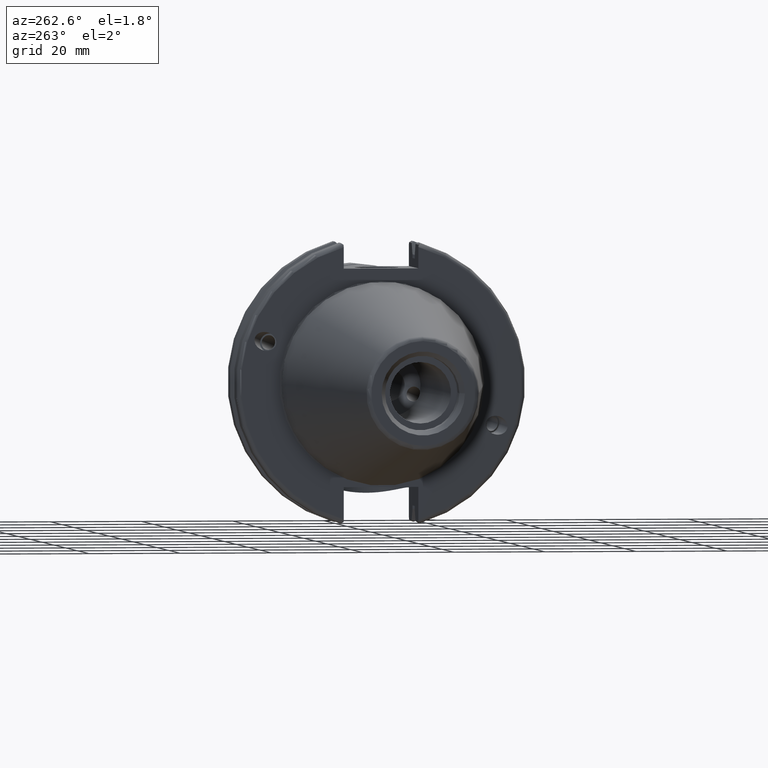
[diagram: clean part render]
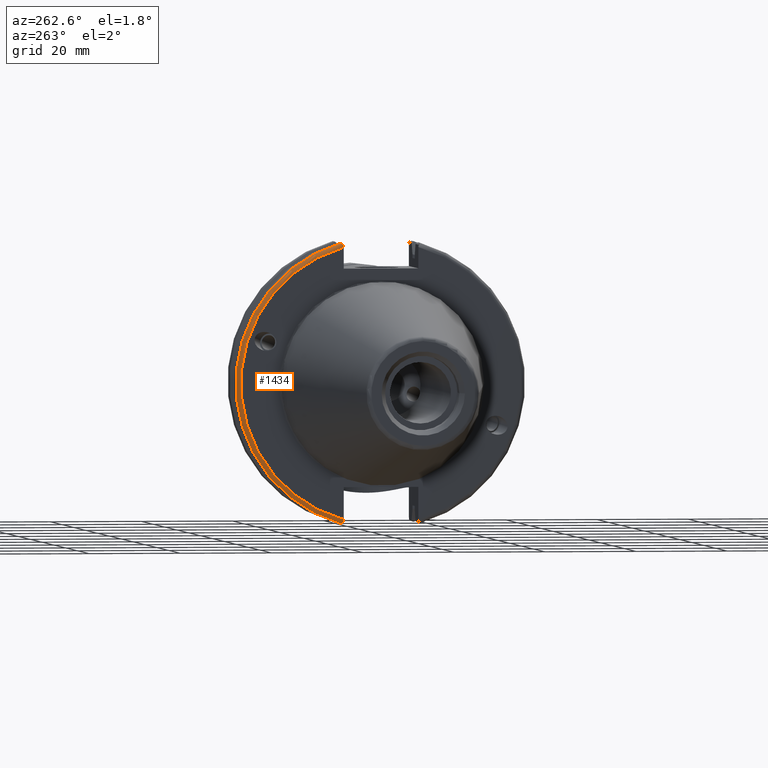
[diagram: same view with one face highlighted and labeled with its STEP entity id]
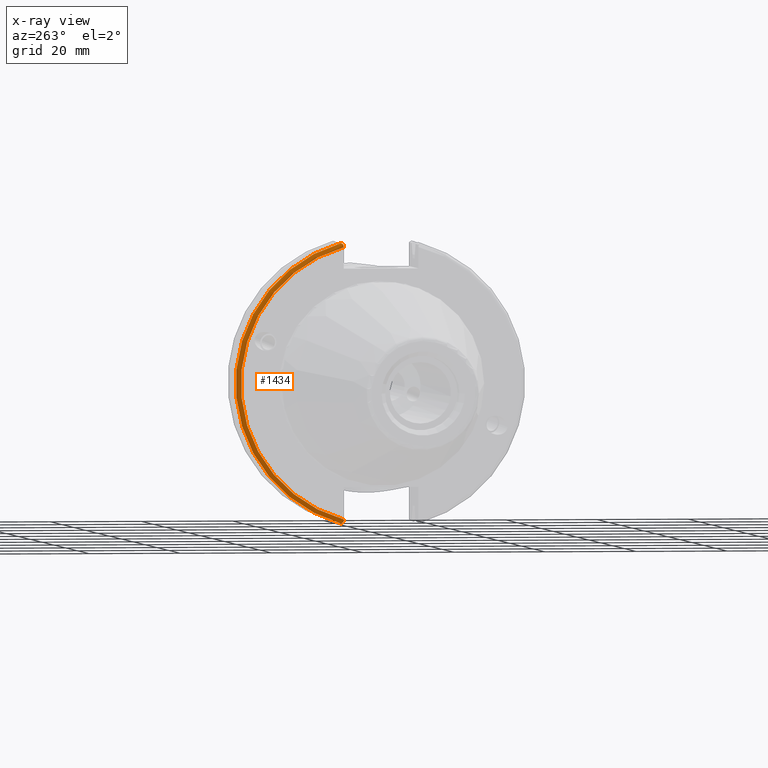
[diagram: x-ray of the same camera — body ghosted, the highlighted face saturated]
A machine part, auxiliary view. The second image highlights one B-rep face of the part: STEP entity #1434.
The next image is the same camera in x-ray: the body ghosted, the highlighted face saturated — about 0% of this face is hidden behind the body in this view.
In plain terms, the highlighted toroidal blend (fillet) surface has major radius 30.75 mm and minor (blend) radius 1 mm.
Its self-contained STEP definition (entity closure, byte-faithful):
#60=TOROIDAL_SURFACE('',#1615,30.75,1.);
#117=B_SPLINE_CURVE_WITH_KNOTS('',3,(#2527,#2528,#2529,#2530,#2531,#2532),
 .UNSPECIFIED.,.F.,.F.,(4,2,4),(0.452741154494498,0.491581665024872,0.505824174364157),
 .UNSPECIFIED.);
#126=B_SPLINE_CURVE_WITH_KNOTS('',3,(#2653,#2654,#2655,#2656,#2657,#2658,
#2659,#2660),.UNSPECIFIED.,.F.,.F.,(4,2,2,4),(-0.104180282751876,-0.072978474246144,
-0.0343524753874979,0.),.UNSPECIFIED.);
#127=B_SPLINE_CURVE_WITH_KNOTS('',3,(#2664,#2665,#2666,#2667,#2668,#2669,
#2670,#2671),.UNSPECIFIED.,.F.,.F.,(4,2,2,4),(0.,0.0343524753874975,0.0729784742461445,
0.104180282751877),.UNSPECIFIED.);
#128=B_SPLINE_CURVE_WITH_KNOTS('',3,(#2672,#2673,#2674,#2675,#2676,#2677),
 .UNSPECIFIED.,.F.,.F.,(4,2,4),(0.0977210450333169,0.111963554372601,0.150804064902975),
 .UNSPECIFIED.);
#195=FACE_OUTER_BOUND('',#288,.T.);
#288=EDGE_LOOP('',(#1207,#1208,#1209,#1210,#1211,#1212));
#529=CIRCLE('',#1598,30.75);
#536=CIRCLE('',#1616,31.75);
#632=VERTEX_POINT('',#2450);
#633=VERTEX_POINT('',#2452);
#651=VERTEX_POINT('',#2525);
#674=VERTEX_POINT('',#2652);
#675=VERTEX_POINT('',#2661);
#676=VERTEX_POINT('',#2663);
#811=EDGE_CURVE('',#633,#632,#529,.T.);
#835=EDGE_CURVE('',#632,#651,#117,.T.);
#866=EDGE_CURVE('',#651,#674,#126,.T.);
#867=EDGE_CURVE('',#674,#675,#536,.T.);
#868=EDGE_CURVE('',#675,#676,#127,.T.);
#869=EDGE_CURVE('',#676,#633,#128,.T.);
#1207=ORIENTED_EDGE('',*,*,#866,.T.);
#1208=ORIENTED_EDGE('',*,*,#867,.T.);
#1209=ORIENTED_EDGE('',*,*,#868,.T.);
#1210=ORIENTED_EDGE('',*,*,#869,.T.);
#1211=ORIENTED_EDGE('',*,*,#811,.T.);
#1212=ORIENTED_EDGE('',*,*,#835,.T.);
#1434=ADVANCED_FACE('',(#195),#60,.T.);
#1598=AXIS2_PLACEMENT_3D('',#2453,#1927,#1928);
#1615=AXIS2_PLACEMENT_3D('',#2651,#1988,#1989);
#1616=AXIS2_PLACEMENT_3D('',#2662,#1990,#1991);
#1927=DIRECTION('center_axis',(1.,0.,0.));
#1928=DIRECTION('ref_axis',(0.,1.,1.60812264967664E-16));
#1988=DIRECTION('center_axis',(1.,0.,0.));
#1989=DIRECTION('ref_axis',(0.,0.,-1.));
#1990=DIRECTION('center_axis',(-1.,0.,0.));
#1991=DIRECTION('ref_axis',(0.,1.,1.60812264967664E-16));
#2450=CARTESIAN_POINT('',(3.175,8.19,29.6392712461019));
#2452=CARTESIAN_POINT('',(3.175,8.18999999999999,-29.6392712461019));
#2453=CARTESIAN_POINT('Origin',(3.175,0.,0.));
#2525=CARTESIAN_POINT('',(3.31912772509028,8.19,30.1755016258903));
#2527=CARTESIAN_POINT('Ctrl Pts',(3.175,8.19,29.6392712461018));
#2528=CARTESIAN_POINT('Ctrl Pts',(3.175,8.19,29.7687396145364));
#2529=CARTESIAN_POINT('Ctrl Pts',(3.20451443291695,8.19,29.9212724384851));
#2530=CARTESIAN_POINT('Ctrl Pts',(3.27103565282437,8.19,30.0852355256475));
#2531=CARTESIAN_POINT('Ctrl Pts',(3.29318362718666,8.19,30.131014531546));
#2532=CARTESIAN_POINT('Ctrl Pts',(3.31912772509028,8.19,30.1755016258903));
#2651=CARTESIAN_POINT('Origin',(4.175,0.,0.));
#2652=CARTESIAN_POINT('',(4.175,8.67204822802685,30.5427254764662));
#2653=CARTESIAN_POINT('Ctrl Pts',(3.31912772509028,8.19,30.1755016258903));
#2654=CARTESIAN_POINT('Ctrl Pts',(3.36755369570114,8.2703682833078,30.2367261024977));
#2655=CARTESIAN_POINT('Ctrl Pts',(3.43232973376814,8.34909446036477,30.2966996242308));
#2656=CARTESIAN_POINT('Ctrl Pts',(3.58532758094931,8.48862804755884,30.4029961692546));
#2657=CARTESIAN_POINT('Ctrl Pts',(3.70655857052286,8.56482138642532,30.4610401774263));
#2658=CARTESIAN_POINT('Ctrl Pts',(3.92668295662254,8.6471881193939,30.5237870709558));
#2659=CARTESIAN_POINT('Ctrl Pts',(4.06049174870834,8.67204822802686,30.5427254764662));
#2660=CARTESIAN_POINT('Ctrl Pts',(4.175,8.67204822802686,30.5427254764662));
#2661=CARTESIAN_POINT('',(4.175,8.67204822802685,-30.5427254764662));
#2662=CARTESIAN_POINT('Origin',(4.175,0.,0.));
#2663=CARTESIAN_POINT('',(3.31912772509028,8.19,-30.1755016258903));
#2664=CARTESIAN_POINT('Ctrl Pts',(4.175,8.67204822802685,-30.5427254764662));
#2665=CARTESIAN_POINT('Ctrl Pts',(4.06049174870834,8.67204822802685,-30.5427254764662));
#2666=CARTESIAN_POINT('Ctrl Pts',(3.92668295662254,8.6471881193939,-30.5237870709558));
#2667=CARTESIAN_POINT('Ctrl Pts',(3.70655857052286,8.56482138642533,-30.4610401774263));
#2668=CARTESIAN_POINT('Ctrl Pts',(3.58532758094931,8.48862804755884,-30.4029961692546));
#2669=CARTESIAN_POINT('Ctrl Pts',(3.43232973376814,8.34909446036477,-30.2966996242308));
#2670=CARTESIAN_POINT('Ctrl Pts',(3.36755369570113,8.2703682833078,-30.2367261024977));
#2671=CARTESIAN_POINT('Ctrl Pts',(3.31912772509028,8.18999999999999,-30.1755016258903));
#2672=CARTESIAN_POINT('Ctrl Pts',(3.31912772509028,8.19,-30.1755016258903));
#2673=CARTESIAN_POINT('Ctrl Pts',(3.29318362718666,8.19,-30.131014531546));
#2674=CARTESIAN_POINT('Ctrl Pts',(3.27103565282437,8.19,-30.0852355256475));
#2675=CARTESIAN_POINT('Ctrl Pts',(3.20451443291695,8.19,-29.9212724384851));
#2676=CARTESIAN_POINT('Ctrl Pts',(3.175,8.19,-29.7687396145364));
#2677=CARTESIAN_POINT('Ctrl Pts',(3.175,8.19,-29.6392712461019));